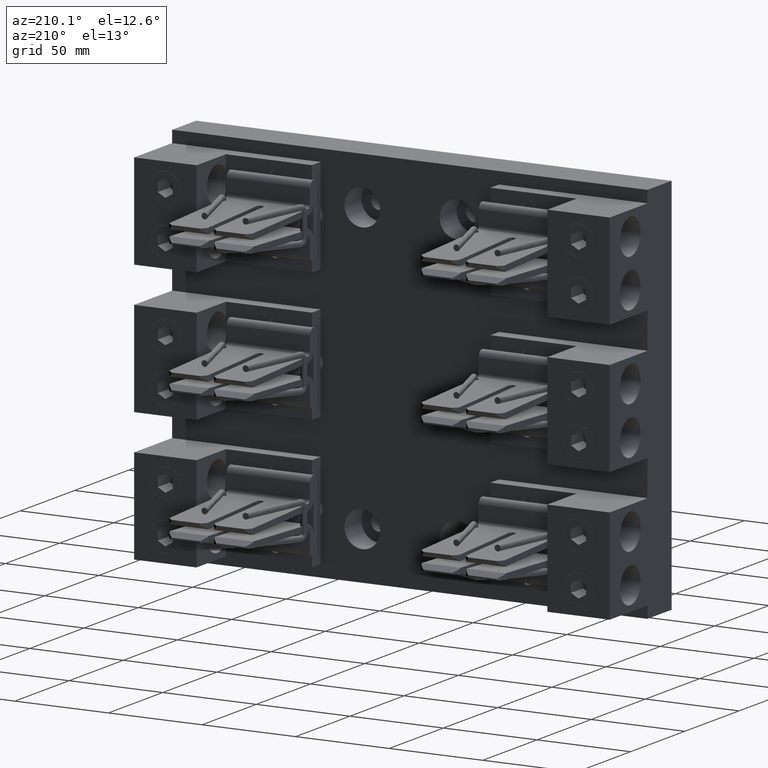
[diagram: clean part render]
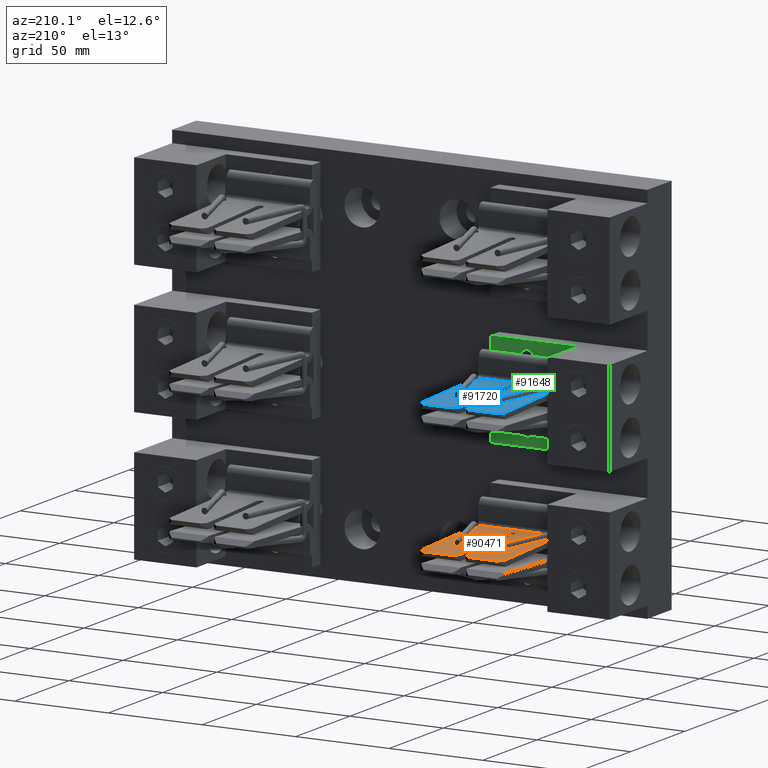
[diagram: same view with three faces highlighted in distinct colors, each labeled with its STEP entity id]
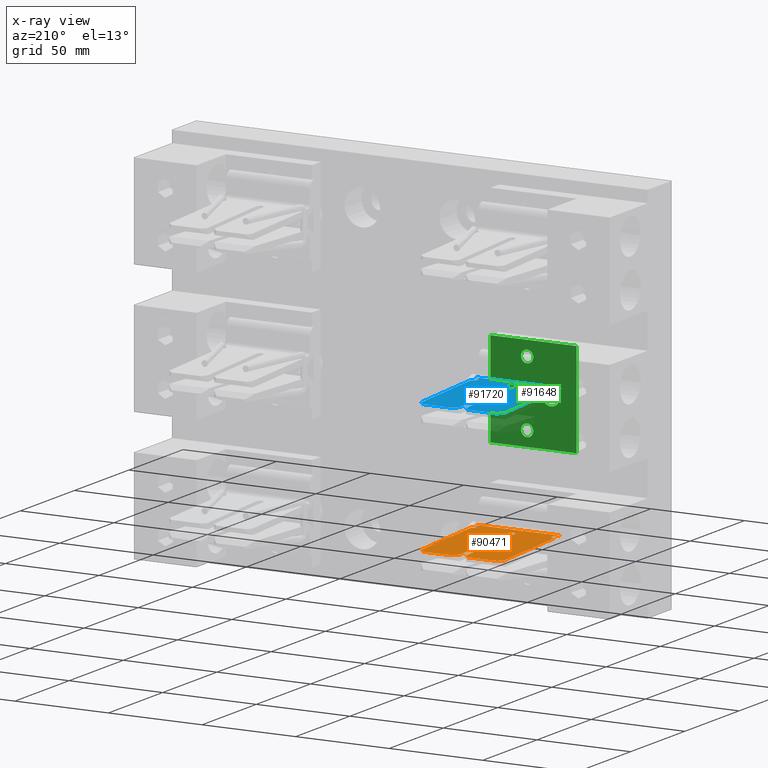
[diagram: x-ray of the same camera — body ghosted, the three highlighted faces saturated]
A machine part, auxiliary view with three faces highlighted in distinct colors.
The next image is the same camera in x-ray (body ghosted, the three faces saturated) — at least one of them is partly hidden behind the body in this view.
Their STEP definitions:

[orange] entity #90471 — the highlighted planar face has unit normal (0, -0.0353, -0.9994).
#1529 = AXIS2_PLACEMENT_3D ( 'NONE', #18706, #18708, #18710 ) ;
#5801 = EDGE_CURVE ( 'NONE', #14370, #14408, #63240, .T. ) ;
#5816 = EDGE_CURVE ( 'NONE', #14446, #14357, #63280, .T. ) ;
#5850 = EDGE_CURVE ( 'NONE', #14313, #14381, #6608, .T. ) ;
#6608 =( BOUNDED_CURVE ( )  B_SPLINE_CURVE ( 3, ( #45332, #45335, #45344, #45331 ),
 .UNSPECIFIED., .F., .T. ) 
 B_SPLINE_CURVE_WITH_KNOTS ( ( 4, 4 ),
 ( 4.712388980384689700, 6.283185307179586200 ),
 .UNSPECIFIED. ) 
 CURVE ( )  GEOMETRIC_REPRESENTATION_ITEM ( )  RATIONAL_B_SPLINE_CURVE ( ( 1.000000000000000000, 0.8047378541243649400, 0.8047378541243649400, 1.000000000000000000 ) ) 
 REPRESENTATION_ITEM ( '' )  );
#6724 =( BOUNDED_CURVE ( )  B_SPLINE_CURVE ( 3, ( #100245, #100227, #100266, #100268 ),
 .UNSPECIFIED., .F., .T. ) 
 B_SPLINE_CURVE_WITH_KNOTS ( ( 4, 4 ),
 ( 3.141592653589793100, 4.712388980384689700 ),
 .UNSPECIFIED. ) 
 CURVE ( )  GEOMETRIC_REPRESENTATION_ITEM ( )  RATIONAL_B_SPLINE_CURVE ( ( 1.000000000000000000, 0.8047378541243649400, 0.8047378541243649400, 1.000000000000000000 ) ) 
 REPRESENTATION_ITEM ( '' )  );
#6725 =( BOUNDED_CURVE ( )  B_SPLINE_CURVE ( 3, ( #100283, #100261, #100265, #100287 ),
 .UNSPECIFIED., .F., .F. ) 
 B_SPLINE_CURVE_WITH_KNOTS ( ( 4, 4 ),
 ( 9.469724577239632400E-017, 3.141592653589793100 ),
 .UNSPECIFIED. ) 
 CURVE ( )  GEOMETRIC_REPRESENTATION_ITEM ( )  RATIONAL_B_SPLINE_CURVE ( ( 1.000000000000000000, 0.3333333333333333700, 0.3333333333333333700, 1.000000000000000000 ) ) 
 REPRESENTATION_ITEM ( '' )  );
#6726 =( BOUNDED_CURVE ( )  B_SPLINE_CURVE ( 3, ( #100307, #100281, #100285, #100311 ),
 .UNSPECIFIED., .F., .F. ) 
 B_SPLINE_CURVE_WITH_KNOTS ( ( 4, 4 ),
 ( 1.570796326794896800, 4.712388980384689700 ),
 .UNSPECIFIED. ) 
 CURVE ( )  GEOMETRIC_REPRESENTATION_ITEM ( )  RATIONAL_B_SPLINE_CURVE ( ( 1.000000000000000000, 0.3333333333333333700, 0.3333333333333333700, 1.000000000000000000 ) ) 
 REPRESENTATION_ITEM ( '' )  );
#7600 = EDGE_CURVE ( 'NONE', #14381, #82788, #9818, .T. ) ;
#7678 = EDGE_CURVE ( 'NONE', #14323, #14313, #6724, .T. ) ;
#7679 = EDGE_CURVE ( 'NONE', #82803, #14323, #10002, .T. ) ;
#7680 = EDGE_CURVE ( 'NONE', #82775, #82227, #10009, .T. ) ;
#7682 = EDGE_CURVE ( 'NONE', #14446, #82227, #6725, .T. ) ;
#7683 = EDGE_CURVE ( 'NONE', #14370, #14357, #10011, .T. ) ;
#7684 = EDGE_CURVE ( 'NONE', #81848, #14408, #10021, .T. ) ;
#7685 = EDGE_CURVE ( 'NONE', #82704, #81848, #10023, .T. ) ;
#7686 = EDGE_CURVE ( 'NONE', #82632, #82704, #6726, .T. ) ;
#7687 = EDGE_CURVE ( 'NONE', #14306, #82632, #10017, .T. ) ;
#7688 = EDGE_CURVE ( 'NONE', #82432, #14306, #10035, .T. ) ;
#7689 = EDGE_CURVE ( 'NONE', #82432, #14307, #10037, .T. ) ;
#7691 = EDGE_CURVE ( 'NONE', #82788, #14307, #10041, .T. ) ;
#7696 = EDGE_CURVE ( 'NONE', #82775, #82803, #10050, .T. ) ;
#9818 = LINE ( 'NONE', #99917, #9829 ) ;
#9829 = VECTOR ( 'NONE', #99942, 39.37007874015748900 ) ;
#10002 = LINE ( 'NONE', #100263, #10006 ) ;
#10006 = VECTOR ( 'NONE', #100275, 39.37007874015748900 ) ;
#10009 = LINE ( 'NONE', #100277, #10015 ) ;
#10011 = LINE ( 'NONE', #100291, #10013 ) ;
#10013 = VECTOR ( 'NONE', #100295, 39.37007874015748100 ) ;
#10015 = VECTOR ( 'NONE', #100279, 39.37007874015748900 ) ;
#10017 = LINE ( 'NONE', #100316, #10027 ) ;
#10021 = LINE ( 'NONE', #100297, #10025 ) ;
#10023 = LINE ( 'NONE', #100301, #10029 ) ;
#10025 = VECTOR ( 'NONE', #100299, 39.37007874015748900 ) ;
#10027 = VECTOR ( 'NONE', #100319, 39.37007874015748100 ) ;
#10029 = VECTOR ( 'NONE', #100303, 39.37007874015748100 ) ;
#10035 = LINE ( 'NONE', #100321, #10039 ) ;
#10037 = LINE ( 'NONE', #100325, #10043 ) ;
#10039 = VECTOR ( 'NONE', #100324, 39.37007874015748100 ) ;
#10041 = LINE ( 'NONE', #100330, #10048 ) ;
#10043 = VECTOR ( 'NONE', #100328, 39.37007874015748100 ) ;
#10048 = VECTOR ( 'NONE', #100333, 39.37007874015748100 ) ;
#10050 = LINE ( 'NONE', #100305, #10053 ) ;
#10053 = VECTOR ( 'NONE', #100309, 39.37007874015748100 ) ;
#11628 = CARTESIAN_POINT ( 'NONE',  ( -2.581000000000000000, 3.521999999999999400, -2.564430197120183900 ) ) ;
#11629 = CARTESIAN_POINT ( 'NONE',  ( -1.875000000000000700, 3.622000000000000300, -2.567960906405042800 ) ) ;
#11635 = CARTESIAN_POINT ( 'NONE',  ( -1.868999999999999600, 1.623999999999999900, -2.497417334893556900 ) ) ;
#11645 = CARTESIAN_POINT ( 'NONE',  ( -1.775000000000000100, 1.529999999999999800, -2.494098468165789000 ) ) ;
#11679 = CARTESIAN_POINT ( 'NONE',  ( -3.525000000000000400, 3.522000000000000200, -2.564430197120184400 ) ) ;
#11692 = CARTESIAN_POINT ( 'NONE',  ( -3.424999999999999800, 3.622000000000000300, -2.567960906405043300 ) ) ;
#11703 = CARTESIAN_POINT ( 'NONE',  ( -1.775000000000000100, 1.718000000000000200, -2.500736201621324400 ) ) ;
#12389 = CARTESIAN_POINT ( 'NONE',  ( -2.818999999999999500, 3.622000000000000300, -2.567960906405043300 ) ) ;
#12427 = CARTESIAN_POINT ( 'NONE',  ( -3.525000000000000400, 1.718000000000000200, -2.500736201621324800 ) ) ;
#14306 = VERTEX_POINT ( 'NONE', #11628 ) ;
#14307 = VERTEX_POINT ( 'NONE', #11629 ) ;
#14313 = VERTEX_POINT ( 'NONE', #11635 ) ;
#14323 = VERTEX_POINT ( 'NONE', #11645 ) ;
#14357 = VERTEX_POINT ( 'NONE', #11679 ) ;
#14370 = VERTEX_POINT ( 'NONE', #11692 ) ;
#14381 = VERTEX_POINT ( 'NONE', #11703 ) ;
#14408 = VERTEX_POINT ( 'NONE', #12389 ) ;
#14446 = VERTEX_POINT ( 'NONE', #12427 ) ;
#16138 = CARTESIAN_POINT ( 'NONE',  ( -2.719000000000000300, 3.522000000000000200, -2.564430197120183900 ) ) ;
#16304 = CARTESIAN_POINT ( 'NONE',  ( -3.525000000000000400, 1.529999999999999800, -2.494098468165789400 ) ) ;
#16384 = CARTESIAN_POINT ( 'NONE',  ( -2.480999999999999000, 3.622000000000000300, -2.567960906405043300 ) ) ;
#16479 = CARTESIAN_POINT ( 'NONE',  ( -2.581000000000000000, 1.753000000000000100, -2.501971949871025600 ) ) ;
#16510 = CARTESIAN_POINT ( 'NONE',  ( -2.718999999999999400, 1.753000000000000100, -2.501971949871025600 ) ) ;
#16541 = CARTESIAN_POINT ( 'NONE',  ( -3.525000000000000400, 1.497777038280820400, -2.492960769064514400 ) ) ;
#16546 = CARTESIAN_POINT ( 'NONE',  ( -1.775000000000000400, 3.522000000000000200, -2.564430197120183500 ) ) ;
#16560 = CARTESIAN_POINT ( 'NONE',  ( -1.775000000000000100, 1.497777038280820900, -2.492960769064513000 ) ) ;
#18691 = PLANE ( 'NONE',  #1529 ) ;
#18706 = CARTESIAN_POINT ( 'NONE',  ( -3.525000000000000400, 3.622000000000000300, -2.567960906405043300 ) ) ;
#18708 = DIRECTION ( 'NONE',  ( 3.921615845194951200E-016, -0.03528510665364337200, -0.9993772867383173800 ) ) ;
#18710 = DIRECTION ( 'NONE',  ( 9.463827654160940800E-017, -0.9993772867383173800, 0.03528510665364337200 ) ) ;
#19878 = FACE_OUTER_BOUND ( 'NONE', #57784, .T. ) ;
#36485 = ORIENTED_EDGE ( 'NONE', *, *, #5850, .T. ) ;
#36486 = ORIENTED_EDGE ( 'NONE', *, *, #7678, .T. ) ;
#36487 = ORIENTED_EDGE ( 'NONE', *, *, #7679, .T. ) ;
#36488 = ORIENTED_EDGE ( 'NONE', *, *, #7696, .T. ) ;
#36489 = ORIENTED_EDGE ( 'NONE', *, *, #7680, .F. ) ;
#36490 = ORIENTED_EDGE ( 'NONE', *, *, #7682, .T. ) ;
#36491 = ORIENTED_EDGE ( 'NONE', *, *, #5816, .F. ) ;
#36492 = ORIENTED_EDGE ( 'NONE', *, *, #7683, .T. ) ;
#36493 = ORIENTED_EDGE ( 'NONE', *, *, #5801, .F. ) ;
#36494 = ORIENTED_EDGE ( 'NONE', *, *, #7684, .T. ) ;
#36495 = ORIENTED_EDGE ( 'NONE', *, *, #7685, .T. ) ;
#36496 = ORIENTED_EDGE ( 'NONE', *, *, #7686, .T. ) ;
#36497 = ORIENTED_EDGE ( 'NONE', *, *, #7687, .T. ) ;
#36498 = ORIENTED_EDGE ( 'NONE', *, *, #7688, .T. ) ;
#36499 = ORIENTED_EDGE ( 'NONE', *, *, #7689, .F. ) ;
#36500 = ORIENTED_EDGE ( 'NONE', *, *, #7691, .T. ) ;
#36501 = ORIENTED_EDGE ( 'NONE', *, *, #7600, .T. ) ;
#45331 = CARTESIAN_POINT ( 'NONE',  ( -1.775000000000000100, 1.718000000000000200, -2.500736201621324400 ) ) ;
#45332 = CARTESIAN_POINT ( 'NONE',  ( -1.868999999999999600, 1.623999999999999900, -2.497417334893556900 ) ) ;
#45335 = CARTESIAN_POINT ( 'NONE',  ( -1.869000000000000000, 1.679063925136929000, -2.499361482010974200 ) ) ;
#45344 = CARTESIAN_POINT ( 'NONE',  ( -1.830063925136928800, 1.717999999999999700, -2.500736201621324400 ) ) ;
#45373 = DIRECTION ( 'NONE',  ( -9.463827654160940800E-017, 0.9993772867383173800, -0.03528510665364337200 ) ) ;
#45374 = CARTESIAN_POINT ( 'NONE',  ( -3.525000000000000400, 3.622000000000000300, -2.567960906405043300 ) ) ;
#45387 = DIRECTION ( 'NONE',  ( 1.000000000000000000, 9.941448615518459200E-017, 3.538835890992686500E-016 ) ) ;
#45397 = CARTESIAN_POINT ( 'NONE',  ( -3.525000000000000400, 3.622000000000000300, -2.567960906405043300 ) ) ;
#57784 = EDGE_LOOP ( 'NONE', ( #36501, #36500, #36499, #36498, #36497, #36496, #36495, #36494, #36493, #36492, #36491, #36490, #36489, #36488, #36487, #36486, #36485 ) ) ;
#63240 = LINE ( 'NONE', #45397, #63258 ) ;
#63258 = VECTOR ( 'NONE', #45387, 39.37007874015748100 ) ;
#63280 = LINE ( 'NONE', #45374, #63286 ) ;
#63286 = VECTOR ( 'NONE', #45373, 39.37007874015748900 ) ;
#81848 = VERTEX_POINT ( 'NONE', #16138 ) ;
#82227 = VERTEX_POINT ( 'NONE', #16304 ) ;
#82432 = VERTEX_POINT ( 'NONE', #16384 ) ;
#82632 = VERTEX_POINT ( 'NONE', #16479 ) ;
#82704 = VERTEX_POINT ( 'NONE', #16510 ) ;
#82775 = VERTEX_POINT ( 'NONE', #16541 ) ;
#82788 = VERTEX_POINT ( 'NONE', #16546 ) ;
#82803 = VERTEX_POINT ( 'NONE', #16560 ) ;
#90471 = ADVANCED_FACE ( 'NONE', ( #19878 ), #18691, .F. ) ;
#99917 = CARTESIAN_POINT ( 'NONE',  ( -1.775000000000000400, 3.622000000000000300, -2.567960906405042800 ) ) ;
#99942 = DIRECTION ( 'NONE',  ( -9.463827654160940800E-017, 0.9993772867383173800, -0.03528510665364337200 ) ) ;
#100227 = CARTESIAN_POINT ( 'NONE',  ( -1.830063925136928800, 1.530000000000000200, -2.494098468165789000 ) ) ;
#100245 = CARTESIAN_POINT ( 'NONE',  ( -1.775000000000000100, 1.529999999999999800, -2.494098468165789000 ) ) ;
#100261 = CARTESIAN_POINT ( 'NONE',  ( -3.337000000000000600, 1.717999999999999700, -2.500736201621324800 ) ) ;
#100263 = CARTESIAN_POINT ( 'NONE',  ( -1.775000000000000400, 3.622000000000000300, -2.567960906405042800 ) ) ;
#100265 = CARTESIAN_POINT ( 'NONE',  ( -3.337000000000000600, 1.530000000000000200, -2.494098468165789400 ) ) ;
#100266 = CARTESIAN_POINT ( 'NONE',  ( -1.869000000000000000, 1.568936074863070700, -2.495473187776139100 ) ) ;
#100268 = CARTESIAN_POINT ( 'NONE',  ( -1.868999999999999600, 1.623999999999999900, -2.497417334893556900 ) ) ;
#100275 = DIRECTION ( 'NONE',  ( -9.463827654160940800E-017, 0.9993772867383173800, -0.03528510665364337200 ) ) ;
#100277 = CARTESIAN_POINT ( 'NONE',  ( -3.525000000000000400, 3.622000000000000300, -2.567960906405043300 ) ) ;
#100279 = DIRECTION ( 'NONE',  ( -9.463827654160940800E-017, 0.9993772867383173800, -0.03528510665364337200 ) ) ;
#100281 = CARTESIAN_POINT ( 'NONE',  ( -2.581000000000000000, 1.615000000000000900, -2.497099571057919600 ) ) ;
#100283 = CARTESIAN_POINT ( 'NONE',  ( -3.525000000000000400, 1.718000000000000200, -2.500736201621324800 ) ) ;
#100285 = CARTESIAN_POINT ( 'NONE',  ( -2.718999999999999400, 1.615000000000000900, -2.497099571057919600 ) ) ;
#100287 = CARTESIAN_POINT ( 'NONE',  ( -3.525000000000000400, 1.529999999999999800, -2.494098468165789400 ) ) ;
#100291 = CARTESIAN_POINT ( 'NONE',  ( -3.532867345756415500, 3.514132654243585100, -2.564152424013090400 ) ) ;
#100295 = DIRECTION ( 'NONE',  ( -0.7068865159459665200, -0.7068865159459648600, 0.02495810785192139800 ) ) ;
#100297 = CARTESIAN_POINT ( 'NONE',  ( -2.818999999999999500, 3.622000000000000300, -2.567960906405043300 ) ) ;
#100299 = DIRECTION ( 'NONE',  ( -0.7068865159459637400, 0.7068865159459674100, -0.02495810785192199800 ) ) ;
#100301 = CARTESIAN_POINT ( 'NONE',  ( -2.719000000000000300, 3.622000000000000300, -2.567960906405043300 ) ) ;
#100303 = DIRECTION ( 'NONE',  ( -2.178892873823366000E-016, 0.9993772867383173800, -0.03528510665364337900 ) ) ;
#100305 = CARTESIAN_POINT ( 'NONE',  ( -3.525000000000000400, 1.497777038280820400, -2.492960769064514400 ) ) ;
#100307 = CARTESIAN_POINT ( 'NONE',  ( -2.581000000000000000, 1.753000000000000100, -2.501971949871025600 ) ) ;
#100309 = DIRECTION ( 'NONE',  ( 1.000000000000000000, 9.941448615518459200E-017, 3.538835890992686500E-016 ) ) ;
#100311 = CARTESIAN_POINT ( 'NONE',  ( -2.718999999999999400, 1.753000000000000100, -2.501971949871025600 ) ) ;
#100316 = CARTESIAN_POINT ( 'NONE',  ( -2.581000000000000000, 3.622000000000000300, -2.567960906405043300 ) ) ;
#100319 = DIRECTION ( 'NONE',  ( -2.861273429911776700E-017, -0.9993772867383173800, 0.03528510665364337900 ) ) ;
#100321 = CARTESIAN_POINT ( 'NONE',  ( -2.590957987920044800, 3.512042012079954500, -2.564078609516105900 ) ) ;
#100324 = DIRECTION ( 'NONE',  ( -0.7068865159459665200, -0.7068865159459648600, 0.02495810785192139500 ) ) ;
#100325 = CARTESIAN_POINT ( 'NONE',  ( -3.525000000000000400, 3.622000000000000300, -2.567960906405043300 ) ) ;
#100328 = DIRECTION ( 'NONE',  ( 1.000000000000000000, 9.941448615518459200E-017, 3.538835890992686500E-016 ) ) ;
#100330 = CARTESIAN_POINT ( 'NONE',  ( -1.875000000000000700, 3.622000000000000300, -2.567960906405042800 ) ) ;
#100333 = DIRECTION ( 'NONE',  ( -0.7068865159459657400, 0.7068865159459655200, -0.02495810785192192600 ) ) ;

[blue] entity #91720 — the highlighted planar face has unit normal (0, -0.0353, -0.9994).
#8558 = PLANE ( 'NONE',  #56436 ) ;
#8575 = CARTESIAN_POINT ( 'NONE',  ( -3.525000000000000400, 3.622000000000000300, 0.1820390935949564600 ) ) ;
#8577 = DIRECTION ( 'NONE',  ( 3.921615845194951200E-016, -0.03528510665364337200, -0.9993772867383173800 ) ) ;
#8579 = DIRECTION ( 'NONE',  ( 9.463827654160940800E-017, -0.9993772867383173800, 0.03528510665364337200 ) ) ;
#22733 = CARTESIAN_POINT ( 'NONE',  ( -1.869000000000000000, 1.679063925136929000, 0.2506385179890257000 ) ) ;
#22738 = CARTESIAN_POINT ( 'NONE',  ( -1.868999999999999600, 1.623999999999999900, 0.2525826651064431200 ) ) ;
#22742 = CARTESIAN_POINT ( 'NONE',  ( -1.830063925136928800, 1.717999999999999700, 0.2492637983786755200 ) ) ;
#22743 = CARTESIAN_POINT ( 'NONE',  ( -1.775000000000000100, 1.718000000000000200, 0.2492637983786756300 ) ) ;
#22781 = CARTESIAN_POINT ( 'NONE',  ( -3.525000000000000400, 3.622000000000000300, 0.1820390935949564600 ) ) ;
#22782 = CARTESIAN_POINT ( 'NONE',  ( -3.525000000000000400, 3.622000000000000300, 0.1820390935949564600 ) ) ;
#22783 = DIRECTION ( 'NONE',  ( -9.463827654160940800E-017, 0.9993772867383173800, -0.03528510665364337200 ) ) ;
#22796 = DIRECTION ( 'NONE',  ( 1.000000000000000000, 9.941448615518459200E-017, 3.538835890992686500E-016 ) ) ;
#22834 = CARTESIAN_POINT ( 'NONE',  ( -1.775000000000000400, 3.622000000000000300, 0.1820390935949570700 ) ) ;
#22835 = DIRECTION ( 'NONE',  ( -9.463827654160940800E-017, 0.9993772867383173800, -0.03528510665364337200 ) ) ;
#22844 = DIRECTION ( 'NONE',  ( 1.000000000000000000, 9.941448615518459200E-017, 3.538835890992686500E-016 ) ) ;
#22852 = CARTESIAN_POINT ( 'NONE',  ( -3.525000000000000400, 1.497777038280820400, 0.2570392309354859200 ) ) ;
#22855 = CARTESIAN_POINT ( 'NONE',  ( -1.875000000000000700, 3.622000000000000300, 0.1820390935949570100 ) ) ;
#22856 = DIRECTION ( 'NONE',  ( -0.7068865159459657400, 0.7068865159459655200, -0.02495810785192192600 ) ) ;
#22860 = CARTESIAN_POINT ( 'NONE',  ( -2.581000000000000000, 1.615000000000000900, 0.2529004289420803100 ) ) ;
#22861 = CARTESIAN_POINT ( 'NONE',  ( -2.590957987920044800, 3.512042012079954500, 0.1859213904838941700 ) ) ;
#22865 = CARTESIAN_POINT ( 'NONE',  ( -3.525000000000000400, 3.622000000000000300, 0.1820390935949564600 ) ) ;
#22866 = CARTESIAN_POINT ( 'NONE',  ( -2.581000000000000000, 1.753000000000000100, 0.2480280501289745800 ) ) ;
#22867 = DIRECTION ( 'NONE',  ( 1.000000000000000000, 9.941448615518459200E-017, 3.538835890992686500E-016 ) ) ;
#22868 = DIRECTION ( 'NONE',  ( -0.7068865159459665200, -0.7068865159459648600, 0.02495810785192139500 ) ) ;
#22869 = CARTESIAN_POINT ( 'NONE',  ( -2.581000000000000000, 3.622000000000000300, 0.1820390935949567900 ) ) ;
#22870 = DIRECTION ( 'NONE',  ( -2.861273429911776700E-017, -0.9993772867383173800, 0.03528510665364337900 ) ) ;
#22871 = CARTESIAN_POINT ( 'NONE',  ( -3.337000000000000600, 1.717999999999999700, 0.2492637983786750400 ) ) ;
#22872 = CARTESIAN_POINT ( 'NONE',  ( -3.525000000000000400, 1.718000000000000200, 0.2492637983786750200 ) ) ;
#22873 = CARTESIAN_POINT ( 'NONE',  ( -2.718999999999999400, 1.615000000000000900, 0.2529004289420802000 ) ) ;
#22874 = CARTESIAN_POINT ( 'NONE',  ( -2.718999999999999400, 1.753000000000000100, 0.2480280501289745500 ) ) ;
#22875 = CARTESIAN_POINT ( 'NONE',  ( -2.719000000000000300, 3.622000000000000300, 0.1820390935949567100 ) ) ;
#22876 = DIRECTION ( 'NONE',  ( -2.178892873823366000E-016, 0.9993772867383173800, -0.03528510665364337900 ) ) ;
#22877 = CARTESIAN_POINT ( 'NONE',  ( -2.818999999999999500, 3.622000000000000300, 0.1820390935949566800 ) ) ;
#22878 = DIRECTION ( 'NONE',  ( -0.7068865159459637400, 0.7068865159459674100, -0.02495810785192199800 ) ) ;
#22879 = CARTESIAN_POINT ( 'NONE',  ( -3.532867345756415500, 3.514132654243585100, 0.1858475759869093700 ) ) ;
#22880 = DIRECTION ( 'NONE',  ( -0.7068865159459665200, -0.7068865159459648600, 0.02495810785192139800 ) ) ;
#22881 = CARTESIAN_POINT ( 'NONE',  ( -1.830063925136928800, 1.530000000000000200, 0.2559015318342107700 ) ) ;
#22882 = CARTESIAN_POINT ( 'NONE',  ( -1.775000000000000100, 1.529999999999999800, 0.2559015318342109400 ) ) ;
#22883 = CARTESIAN_POINT ( 'NONE',  ( -3.337000000000000600, 1.530000000000000200, 0.2559015318342102700 ) ) ;
#22884 = CARTESIAN_POINT ( 'NONE',  ( -3.525000000000000400, 1.529999999999999800, 0.2559015318342103300 ) ) ;
#22885 = CARTESIAN_POINT ( 'NONE',  ( -3.525000000000000400, 3.622000000000000300, 0.1820390935949564600 ) ) ;
#22886 = DIRECTION ( 'NONE',  ( -9.463827654160940800E-017, 0.9993772867383173800, -0.03528510665364337200 ) ) ;
#22887 = CARTESIAN_POINT ( 'NONE',  ( -1.775000000000000400, 3.622000000000000300, 0.1820390935949570700 ) ) ;
#22888 = DIRECTION ( 'NONE',  ( -9.463827654160940800E-017, 0.9993772867383173800, -0.03528510665364337200 ) ) ;
#22891 = CARTESIAN_POINT ( 'NONE',  ( -1.869000000000000000, 1.568936074863070700, 0.2545268122238606400 ) ) ;
#22892 = CARTESIAN_POINT ( 'NONE',  ( -1.868999999999999600, 1.623999999999999900, 0.2525826651064431200 ) ) ;
#25486 = LINE ( 'NONE', #22781, #25489 ) ;
#25489 = VECTOR ( 'NONE', #22783, 39.37007874015748900 ) ;
#25498 = LINE ( 'NONE', #22782, #25503 ) ;
#25503 = VECTOR ( 'NONE', #22796, 39.37007874015748100 ) ;
#25540 = LINE ( 'NONE', #22834, #25543 ) ;
#25543 = VECTOR ( 'NONE', #22835, 39.37007874015748900 ) ;
#25554 = LINE ( 'NONE', #22861, #25567 ) ;
#25558 = LINE ( 'NONE', #22852, #25560 ) ;
#25560 = VECTOR ( 'NONE', #22844, 39.37007874015748100 ) ;
#25561 = LINE ( 'NONE', #22855, #25563 ) ;
#25562 = LINE ( 'NONE', #22865, #25565 ) ;
#25563 = VECTOR ( 'NONE', #22856, 39.37007874015748100 ) ;
#25565 = VECTOR ( 'NONE', #22867, 39.37007874015748100 ) ;
#25566 = LINE ( 'NONE', #22869, #25568 ) ;
#25567 = VECTOR ( 'NONE', #22868, 39.37007874015748100 ) ;
#25568 = VECTOR ( 'NONE', #22870, 39.37007874015748100 ) ;
#25569 = LINE ( 'NONE', #22875, #25571 ) ;
#25570 = LINE ( 'NONE', #22877, #25573 ) ;
#25571 = VECTOR ( 'NONE', #22876, 39.37007874015748100 ) ;
#25572 = LINE ( 'NONE', #22879, #25574 ) ;
#25573 = VECTOR ( 'NONE', #22878, 39.37007874015748900 ) ;
#25574 = VECTOR ( 'NONE', #22880, 39.37007874015748100 ) ;
#25575 = LINE ( 'NONE', #22885, #25577 ) ;
#25576 = LINE ( 'NONE', #22887, #25578 ) ;
#25577 = VECTOR ( 'NONE', #22886, 39.37007874015748900 ) ;
#25578 = VECTOR ( 'NONE', #22888, 39.37007874015748900 ) ;
#27614 = CARTESIAN_POINT ( 'NONE',  ( -2.581000000000000000, 3.521999999999999400, 0.1855698028798159800 ) ) ;
#27634 = CARTESIAN_POINT ( 'NONE',  ( -1.775000000000000100, 1.529999999999999800, 0.2559015318342109400 ) ) ;
#27651 = CARTESIAN_POINT ( 'NONE',  ( -1.868999999999999600, 1.623999999999999900, 0.2525826651064431200 ) ) ;
#27704 = CARTESIAN_POINT ( 'NONE',  ( -1.775000000000000100, 1.718000000000000200, 0.2492637983786756300 ) ) ;
#27707 = CARTESIAN_POINT ( 'NONE',  ( -3.525000000000000400, 1.497777038280820400, 0.2570392309354859200 ) ) ;
#27728 = CARTESIAN_POINT ( 'NONE',  ( -3.525000000000000400, 1.529999999999999800, 0.2559015318342103300 ) ) ;
#27742 = CARTESIAN_POINT ( 'NONE',  ( -2.718999999999999400, 1.753000000000000100, 0.2480280501289745500 ) ) ;
#27793 = CARTESIAN_POINT ( 'NONE',  ( -2.719000000000000300, 3.522000000000000200, 0.1855698028798158600 ) ) ;
#27795 = CARTESIAN_POINT ( 'NONE',  ( -2.818999999999999500, 3.622000000000000300, 0.1820390935949566800 ) ) ;
#27871 = CARTESIAN_POINT ( 'NONE',  ( -2.480999999999999000, 3.622000000000000300, 0.1820390935949568200 ) ) ;
#27950 = CARTESIAN_POINT ( 'NONE',  ( -1.875000000000000700, 3.622000000000000300, 0.1820390935949570100 ) ) ;
#27959 = CARTESIAN_POINT ( 'NONE',  ( -1.775000000000000400, 3.522000000000000200, 0.1855698028798162500 ) ) ;
#27998 = CARTESIAN_POINT ( 'NONE',  ( -2.581000000000000000, 1.753000000000000100, 0.2480280501289745800 ) ) ;
#28016 = CARTESIAN_POINT ( 'NONE',  ( -3.525000000000000400, 3.522000000000000200, 0.1855698028798156200 ) ) ;
#28048 = CARTESIAN_POINT ( 'NONE',  ( -3.525000000000000400, 1.718000000000000200, 0.2492637983786750200 ) ) ;
#28052 = CARTESIAN_POINT ( 'NONE',  ( -1.775000000000000100, 1.497777038280820900, 0.2570392309354865300 ) ) ;
#31022 = VERTEX_POINT ( 'NONE', #27614 ) ;
#31038 = VERTEX_POINT ( 'NONE', #27634 ) ;
#31049 = VERTEX_POINT ( 'NONE', #27651 ) ;
#31090 = VERTEX_POINT ( 'NONE', #27704 ) ;
#31093 = VERTEX_POINT ( 'NONE', #27707 ) ;
#31108 = VERTEX_POINT ( 'NONE', #27728 ) ;
#31121 = VERTEX_POINT ( 'NONE', #27742 ) ;
#31176 = VERTEX_POINT ( 'NONE', #27793 ) ;
#31178 = VERTEX_POINT ( 'NONE', #27795 ) ;
#31221 = VERTEX_POINT ( 'NONE', #27871 ) ;
#31243 = VERTEX_POINT ( 'NONE', #27950 ) ;
#31251 = VERTEX_POINT ( 'NONE', #27959 ) ;
#31262 = VERTEX_POINT ( 'NONE', #27998 ) ;
#31270 = VERTEX_POINT ( 'NONE', #28016 ) ;
#31284 = VERTEX_POINT ( 'NONE', #28048 ) ;
#31289 = VERTEX_POINT ( 'NONE', #28052 ) ;
#31348 = VERTEX_POINT ( 'NONE', #59212 ) ;
#36633 = EDGE_LOOP ( 'NONE', ( #63801, #63803, #63805, #63807, #63809, #63811, #63813, #63815, #63817, #63819, #63821, #63823, #63825, #63827, #63829, #63831, #63833 ) ) ;
#46264 = EDGE_CURVE ( 'NONE', #31049, #31090, #86323, .T. ) ;
#46281 = EDGE_CURVE ( 'NONE', #31284, #31270, #25486, .T. ) ;
#46288 = EDGE_CURVE ( 'NONE', #31348, #31178, #25498, .T. ) ;
#46308 = EDGE_CURVE ( 'NONE', #31090, #31251, #25540, .T. ) ;
#46318 = EDGE_CURVE ( 'NONE', #31093, #31289, #25558, .T. ) ;
#46320 = EDGE_CURVE ( 'NONE', #31251, #31243, #25561, .T. ) ;
#46321 = EDGE_CURVE ( 'NONE', #31221, #31243, #25562, .T. ) ;
#46322 = EDGE_CURVE ( 'NONE', #31221, #31022, #25554, .T. ) ;
#46323 = EDGE_CURVE ( 'NONE', #31022, #31262, #25566, .T. ) ;
#46324 = EDGE_CURVE ( 'NONE', #31262, #31121, #86329, .T. ) ;
#46325 = EDGE_CURVE ( 'NONE', #31121, #31176, #25569, .T. ) ;
#46326 = EDGE_CURVE ( 'NONE', #31176, #31178, #25570, .T. ) ;
#46327 = EDGE_CURVE ( 'NONE', #31348, #31270, #25572, .T. ) ;
#46328 = EDGE_CURVE ( 'NONE', #31284, #31108, #86331, .T. ) ;
#46329 = EDGE_CURVE ( 'NONE', #31093, #31108, #25575, .T. ) ;
#46330 = EDGE_CURVE ( 'NONE', #31289, #31038, #25576, .T. ) ;
#46331 = EDGE_CURVE ( 'NONE', #31038, #31049, #86333, .T. ) ;
#56436 = AXIS2_PLACEMENT_3D ( 'NONE', #8575, #8577, #8579 ) ;
#59212 = CARTESIAN_POINT ( 'NONE',  ( -3.424999999999999800, 3.622000000000000300, 0.1820390935949564900 ) ) ;
#63801 = ORIENTED_EDGE ( 'NONE', *, *, #46308, .T. ) ;
#63803 = ORIENTED_EDGE ( 'NONE', *, *, #46320, .T. ) ;
#63805 = ORIENTED_EDGE ( 'NONE', *, *, #46321, .F. ) ;
#63807 = ORIENTED_EDGE ( 'NONE', *, *, #46322, .T. ) ;
#63809 = ORIENTED_EDGE ( 'NONE', *, *, #46323, .T. ) ;
#63811 = ORIENTED_EDGE ( 'NONE', *, *, #46324, .T. ) ;
#63813 = ORIENTED_EDGE ( 'NONE', *, *, #46325, .T. ) ;
#63815 = ORIENTED_EDGE ( 'NONE', *, *, #46326, .T. ) ;
#63817 = ORIENTED_EDGE ( 'NONE', *, *, #46288, .F. ) ;
#63819 = ORIENTED_EDGE ( 'NONE', *, *, #46327, .T. ) ;
#63821 = ORIENTED_EDGE ( 'NONE', *, *, #46281, .F. ) ;
#63823 = ORIENTED_EDGE ( 'NONE', *, *, #46328, .T. ) ;
#63825 = ORIENTED_EDGE ( 'NONE', *, *, #46329, .F. ) ;
#63827 = ORIENTED_EDGE ( 'NONE', *, *, #46318, .T. ) ;
#63829 = ORIENTED_EDGE ( 'NONE', *, *, #46330, .T. ) ;
#63831 = ORIENTED_EDGE ( 'NONE', *, *, #46331, .T. ) ;
#63833 = ORIENTED_EDGE ( 'NONE', *, *, #46264, .T. ) ;
#86323 =( BOUNDED_CURVE ( )  B_SPLINE_CURVE ( 3, ( #22738, #22733, #22742, #22743 ),
 .UNSPECIFIED., .F., .F. ) 
 B_SPLINE_CURVE_WITH_KNOTS ( ( 4, 4 ),
 ( 4.712388980384689700, 6.283185307179586200 ),
 .UNSPECIFIED. ) 
 CURVE ( )  GEOMETRIC_REPRESENTATION_ITEM ( )  RATIONAL_B_SPLINE_CURVE ( ( 1.000000000000000000, 0.8047378541243649400, 0.8047378541243649400, 1.000000000000000000 ) ) 
 REPRESENTATION_ITEM ( '' )  );
#86329 =( BOUNDED_CURVE ( )  B_SPLINE_CURVE ( 3, ( #22866, #22860, #22873, #22874 ),
 .UNSPECIFIED., .F., .F. ) 
 B_SPLINE_CURVE_WITH_KNOTS ( ( 4, 4 ),
 ( 1.570796326794896800, 4.712388980384689700 ),
 .UNSPECIFIED. ) 
 CURVE ( )  GEOMETRIC_REPRESENTATION_ITEM ( )  RATIONAL_B_SPLINE_CURVE ( ( 1.000000000000000000, 0.3333333333333333700, 0.3333333333333333700, 1.000000000000000000 ) ) 
 REPRESENTATION_ITEM ( '' )  );
#86331 =( BOUNDED_CURVE ( )  B_SPLINE_CURVE ( 3, ( #22872, #22871, #22883, #22884 ),
 .UNSPECIFIED., .F., .F. ) 
 B_SPLINE_CURVE_WITH_KNOTS ( ( 4, 4 ),
 ( 9.469724577239687900E-017, 3.141592653589793100 ),
 .UNSPECIFIED. ) 
 CURVE ( )  GEOMETRIC_REPRESENTATION_ITEM ( )  RATIONAL_B_SPLINE_CURVE ( ( 1.000000000000000000, 0.3333333333333333700, 0.3333333333333333700, 1.000000000000000000 ) ) 
 REPRESENTATION_ITEM ( '' )  );
#86333 =( BOUNDED_CURVE ( )  B_SPLINE_CURVE ( 3, ( #22882, #22881, #22891, #22892 ),
 .UNSPECIFIED., .F., .F. ) 
 B_SPLINE_CURVE_WITH_KNOTS ( ( 4, 4 ),
 ( 3.141592653589793100, 4.712388980384689700 ),
 .UNSPECIFIED. ) 
 CURVE ( )  GEOMETRIC_REPRESENTATION_ITEM ( )  RATIONAL_B_SPLINE_CURVE ( ( 1.000000000000000000, 0.8047378541243649400, 0.8047378541243649400, 1.000000000000000000 ) ) 
 REPRESENTATION_ITEM ( '' )  );
#91720 = ADVANCED_FACE ( 'NONE', ( #98352 ), #8558, .F. ) ;
#98352 = FACE_OUTER_BOUND ( 'NONE', #36633, .T. ) ;

[green] entity #91648 — the highlighted planar face has unit normal (0, -1, 0).
#12605 = CARTESIAN_POINT ( 'NONE',  ( -2.650000000000000400, 1.186999999999999800, -0.6880000000000000600 ) ) ;
#12606 = DIRECTION ( 'NONE',  ( -0.0000000000000000000, 1.000000000000000000, -0.0000000000000000000 ) ) ;
#12607 = DIRECTION ( 'NONE',  ( 0.0000000000000000000, 0.0000000000000000000, 1.000000000000000000 ) ) ;
#12615 = CARTESIAN_POINT ( 'NONE',  ( -2.649999999999999900, 1.186999999999999800, 0.6880000000000000600 ) ) ;
#12616 = DIRECTION ( 'NONE',  ( -0.0000000000000000000, 1.000000000000000000, -0.0000000000000000000 ) ) ;
#12617 = DIRECTION ( 'NONE',  ( 0.0000000000000000000, 0.0000000000000000000, 1.000000000000000000 ) ) ;
#12625 = CARTESIAN_POINT ( 'NONE',  ( -3.149999999999999900, 1.186999999999999600, 0.0000000000000000000 ) ) ;
#12626 = DIRECTION ( 'NONE',  ( -1.130108105487147000E-016, 1.000000000000000000, 0.0000000000000000000 ) ) ;
#12627 = DIRECTION ( 'NONE',  ( -1.000000000000000000, 0.0000000000000000000, 0.0000000000000000000 ) ) ;
#12637 = CARTESIAN_POINT ( 'NONE',  ( -2.149999999999999900, 1.186999999999999800, 0.0000000000000000000 ) ) ;
#12638 = DIRECTION ( 'NONE',  ( -1.130108105487147000E-016, 1.000000000000000000, 0.0000000000000000000 ) ) ;
#12639 = DIRECTION ( 'NONE',  ( -1.000000000000000000, 0.0000000000000000000, 0.0000000000000000000 ) ) ;
#12746 = CARTESIAN_POINT ( 'NONE',  ( -3.689999999999999500, 1.186999999999999600, 1.000000000000000000 ) ) ;
#12751 = DIRECTION ( 'NONE',  ( -0.0000000000000000000, -0.0000000000000000000, -1.000000000000000000 ) ) ;
#12752 = CARTESIAN_POINT ( 'NONE',  ( -3.689999999999999500, 1.186999999999999600, 1.000000000000000000 ) ) ;
#12755 = DIRECTION ( 'NONE',  ( -0.0000000000000000000, -0.0000000000000000000, -1.000000000000000000 ) ) ;
#12758 = CARTESIAN_POINT ( 'NONE',  ( -3.689999999999999500, 1.186999999999999600, 1.000000000000000000 ) ) ;
#12759 = DIRECTION ( 'NONE',  ( -0.0000000000000000000, -0.0000000000000000000, -1.000000000000000000 ) ) ;
#12801 = CARTESIAN_POINT ( 'NONE',  ( -1.876999999999999800, 1.186999999999999800, 1.000000000000000000 ) ) ;
#12802 = DIRECTION ( 'NONE',  ( -0.0000000000000000000, -0.0000000000000000000, -1.000000000000000000 ) ) ;
#12804 = CARTESIAN_POINT ( 'NONE',  ( -2.650000000000000400, 1.186999999999999800, -0.6880000000000000600 ) ) ;
#12805 = DIRECTION ( 'NONE',  ( -0.0000000000000000000, 1.000000000000000000, -0.0000000000000000000 ) ) ;
#12806 = DIRECTION ( 'NONE',  ( 0.0000000000000000000, 0.0000000000000000000, 1.000000000000000000 ) ) ;
#12807 = CARTESIAN_POINT ( 'NONE',  ( -2.649999999999999900, 1.186999999999999800, 0.6880000000000000600 ) ) ;
#12808 = DIRECTION ( 'NONE',  ( -0.0000000000000000000, 1.000000000000000000, -0.0000000000000000000 ) ) ;
#12809 = DIRECTION ( 'NONE',  ( 0.0000000000000000000, 0.0000000000000000000, 1.000000000000000000 ) ) ;
#12810 = CARTESIAN_POINT ( 'NONE',  ( -1.876999999999999800, 1.186999999999999800, -1.000000000000000000 ) ) ;
#12811 = DIRECTION ( 'NONE',  ( -1.000000000000000000, -1.130108105487147000E-016, 0.0000000000000000000 ) ) ;
#12812 = CARTESIAN_POINT ( 'NONE',  ( -3.149999999999999900, 1.186999999999999600, 0.0000000000000000000 ) ) ;
#12813 = DIRECTION ( 'NONE',  ( -1.130108105487147000E-016, 1.000000000000000000, 0.0000000000000000000 ) ) ;
#12814 = DIRECTION ( 'NONE',  ( -1.000000000000000000, 0.0000000000000000000, 0.0000000000000000000 ) ) ;
#12815 = CARTESIAN_POINT ( 'NONE',  ( -1.876999999999999800, 1.186999999999999800, 1.000000000000000000 ) ) ;
#12816 = CARTESIAN_POINT ( 'NONE',  ( -3.689999999999999500, 1.186999999999999600, 1.000000000000000000 ) ) ;
#12817 = CARTESIAN_POINT ( 'NONE',  ( -2.149999999999999900, 1.186999999999999800, 0.0000000000000000000 ) ) ;
#12818 = DIRECTION ( 'NONE',  ( -1.130108105487147000E-016, 1.000000000000000000, 0.0000000000000000000 ) ) ;
#12819 = DIRECTION ( 'NONE',  ( -1.000000000000000000, 0.0000000000000000000, 0.0000000000000000000 ) ) ;
#12820 = CARTESIAN_POINT ( 'NONE',  ( -3.689999999999999500, 1.186999999999999600, 1.000000000000000000 ) ) ;
#12821 = DIRECTION ( 'NONE',  ( -0.0000000000000000000, -0.0000000000000000000, -1.000000000000000000 ) ) ;
#12822 = DIRECTION ( 'NONE',  ( -0.0000000000000000000, -0.0000000000000000000, -1.000000000000000000 ) ) ;
#12823 = DIRECTION ( 'NONE',  ( -1.000000000000000000, -1.130108105487147000E-016, 0.0000000000000000000 ) ) ;
#15875 = CARTESIAN_POINT ( 'NONE',  ( -1.876999999999999800, 1.186999999999999800, 1.000000000000000000 ) ) ;
#15878 = CARTESIAN_POINT ( 'NONE',  ( -1.876999999999999800, 1.186999999999999800, -1.000000000000000000 ) ) ;
#15903 = CARTESIAN_POINT ( 'NONE',  ( -3.689999999999999500, 1.186999999999999600, -1.000000000000000000 ) ) ;
#15912 = CARTESIAN_POINT ( 'NONE',  ( -2.307999999999999400, 1.186999999999999800, 0.0000000000000000000 ) ) ;
#15914 = CARTESIAN_POINT ( 'NONE',  ( -1.992000000000000000, 1.186999999999999800, 1.934941942652816200E-017 ) ) ;
#15919 = CARTESIAN_POINT ( 'NONE',  ( -3.338499999999999800, 1.186999999999999600, 0.0000000000000000000 ) ) ;
#15921 = CARTESIAN_POINT ( 'NONE',  ( -2.961500000000000000, 1.186999999999999600, 2.308459216392761500E-017 ) ) ;
#15927 = CARTESIAN_POINT ( 'NONE',  ( -2.649999999999999900, 1.186999999999999800, 0.8164999999999994500 ) ) ;
#15929 = CARTESIAN_POINT ( 'NONE',  ( -2.649999999999999900, 1.186999999999999800, 0.5595000000000005500 ) ) ;
#15933 = CARTESIAN_POINT ( 'NONE',  ( -2.650000000000000400, 1.186999999999999800, -0.5595000000000002200 ) ) ;
#15934 = CARTESIAN_POINT ( 'NONE',  ( -2.650000000000000400, 1.186999999999999800, -0.8164999999999997800 ) ) ;
#15939 = CARTESIAN_POINT ( 'NONE',  ( -3.689999999999999500, 1.186999999999999600, 0.7065332902948088200 ) ) ;
#15940 = CARTESIAN_POINT ( 'NONE',  ( -3.689999999999999500, 1.186999999999999600, 1.000000000000000000 ) ) ;
#15951 = CARTESIAN_POINT ( 'NONE',  ( -3.689999999999999500, 1.186999999999999600, -0.2934667097051911800 ) ) ;
#15957 = CARTESIAN_POINT ( 'NONE',  ( -3.689999999999999500, 1.186999999999999600, 0.2934667097051912300 ) ) ;
#15971 = CARTESIAN_POINT ( 'NONE',  ( -3.689999999999999500, 1.186999999999999600, -0.7065332902948088200 ) ) ;
#21338 = PLANE ( 'NONE',  #56014 ) ;
#21357 = CARTESIAN_POINT ( 'NONE',  ( -1.876999999999999800, 1.186999999999999800, 1.000000000000000000 ) ) ;
#21359 = DIRECTION ( 'NONE',  ( 1.130108105487147000E-016, -1.000000000000000000, 0.0000000000000000000 ) ) ;
#21361 = DIRECTION ( 'NONE',  ( 1.000000000000000000, 1.130108105487147000E-016, 0.0000000000000000000 ) ) ;
#28899 = EDGE_CURVE ( 'NONE', #78168, #78167, #63569, .T. ) ;
#28907 = EDGE_CURVE ( 'NONE', #78162, #78160, #63581, .T. ) ;
#28916 = EDGE_CURVE ( 'NONE', #78150, #78148, #63593, .T. ) ;
#28924 = EDGE_CURVE ( 'NONE', #78143, #78140, #63605, .T. ) ;
#28946 = EDGE_CURVE ( 'NONE', #78215, #78127, #63623, .T. ) ;
#28954 = EDGE_CURVE ( 'NONE', #78174, #78173, #63645, .T. ) ;
#28959 = EDGE_CURVE ( 'NONE', #78196, #78190, #63656, .T. ) ;
#28993 = EDGE_CURVE ( 'NONE', #78092, #78096, #63702, .T. ) ;
#28997 = EDGE_CURVE ( 'NONE', #78167, #78168, #63710, .T. ) ;
#28999 = EDGE_CURVE ( 'NONE', #78160, #78162, #63714, .T. ) ;
#29002 = EDGE_CURVE ( 'NONE', #78148, #78150, #63716, .T. ) ;
#29004 = EDGE_CURVE ( 'NONE', #78140, #78143, #63718, .T. ) ;
#29006 = EDGE_CURVE ( 'NONE', #78096, #78127, #63720, .T. ) ;
#29008 = EDGE_CURVE ( 'NONE', #78190, #78215, #63722, .T. ) ;
#29010 = EDGE_CURVE ( 'NONE', #78173, #78196, #63706, .T. ) ;
#29012 = EDGE_CURVE ( 'NONE', #78092, #78174, #63726, .T. ) ;
#35623 = EDGE_LOOP ( 'NONE', ( #57282, #57279, #57277, #57274, #57271, #57269, #57266, #57264 ) ) ;
#35637 = EDGE_LOOP ( 'NONE', ( #57285, #57284 ) ) ;
#35638 = EDGE_LOOP ( 'NONE', ( #57301, #57298 ) ) ;
#35641 = EDGE_LOOP ( 'NONE', ( #57296, #57293 ) ) ;
#35642 = EDGE_LOOP ( 'NONE', ( #57290, #57288 ) ) ;
#56014 = AXIS2_PLACEMENT_3D ( 'NONE', #21357, #21359, #21361 ) ;
#57264 = ORIENTED_EDGE ( 'NONE', *, *, #28993, .T. ) ;
#57266 = ORIENTED_EDGE ( 'NONE', *, *, #29012, .F. ) ;
#57269 = ORIENTED_EDGE ( 'NONE', *, *, #28954, .F. ) ;
#57271 = ORIENTED_EDGE ( 'NONE', *, *, #29010, .F. ) ;
#57274 = ORIENTED_EDGE ( 'NONE', *, *, #28959, .F. ) ;
#57277 = ORIENTED_EDGE ( 'NONE', *, *, #29008, .F. ) ;
#57279 = ORIENTED_EDGE ( 'NONE', *, *, #28946, .F. ) ;
#57282 = ORIENTED_EDGE ( 'NONE', *, *, #29006, .T. ) ;
#57284 = ORIENTED_EDGE ( 'NONE', *, *, #28924, .F. ) ;
#57285 = ORIENTED_EDGE ( 'NONE', *, *, #29004, .F. ) ;
#57288 = ORIENTED_EDGE ( 'NONE', *, *, #28916, .F. ) ;
#57290 = ORIENTED_EDGE ( 'NONE', *, *, #29002, .F. ) ;
#57293 = ORIENTED_EDGE ( 'NONE', *, *, #28907, .F. ) ;
#57296 = ORIENTED_EDGE ( 'NONE', *, *, #28999, .F. ) ;
#57298 = ORIENTED_EDGE ( 'NONE', *, *, #28899, .F. ) ;
#57301 = ORIENTED_EDGE ( 'NONE', *, *, #28997, .F. ) ;
#63569 = CIRCLE ( 'NONE', #80861, 0.1284999999999997300 ) ;
#63581 = CIRCLE ( 'NONE', #80870, 0.1284999999999994800 ) ;
#63593 = CIRCLE ( 'NONE', #80878, 0.1884999999999999200 ) ;
#63605 = CIRCLE ( 'NONE', #80885, 0.1579999999999997800 ) ;
#63623 = LINE ( 'NONE', #12746, #63639 ) ;
#63639 = VECTOR ( 'NONE', #12751, 39.37007874015748100 ) ;
#63645 = LINE ( 'NONE', #12752, #63654 ) ;
#63654 = VECTOR ( 'NONE', #12759, 39.37007874015748100 ) ;
#63656 = LINE ( 'NONE', #12758, #63660 ) ;
#63660 = VECTOR ( 'NONE', #12755, 39.37007874015748100 ) ;
#63702 = LINE ( 'NONE', #12801, #63708 ) ;
#63706 = LINE ( 'NONE', #12816, #63732 ) ;
#63708 = VECTOR ( 'NONE', #12802, 39.37007874015748100 ) ;
#63710 = CIRCLE ( 'NONE', #80929, 0.1284999999999997300 ) ;
#63714 = CIRCLE ( 'NONE', #80933, 0.1284999999999994800 ) ;
#63716 = CIRCLE ( 'NONE', #80937, 0.1884999999999999200 ) ;
#63718 = CIRCLE ( 'NONE', #80941, 0.1579999999999997800 ) ;
#63720 = LINE ( 'NONE', #12810, #63724 ) ;
#63722 = LINE ( 'NONE', #12820, #63728 ) ;
#63724 = VECTOR ( 'NONE', #12811, 39.37007874015748100 ) ;
#63726 = LINE ( 'NONE', #12815, #63736 ) ;
#63728 = VECTOR ( 'NONE', #12821, 39.37007874015748100 ) ;
#63732 = VECTOR ( 'NONE', #12822, 39.37007874015748100 ) ;
#63736 = VECTOR ( 'NONE', #12823, 39.37007874015748100 ) ;
#78092 = VERTEX_POINT ( 'NONE', #15875 ) ;
#78096 = VERTEX_POINT ( 'NONE', #15878 ) ;
#78127 = VERTEX_POINT ( 'NONE', #15903 ) ;
#78140 = VERTEX_POINT ( 'NONE', #15912 ) ;
#78143 = VERTEX_POINT ( 'NONE', #15914 ) ;
#78148 = VERTEX_POINT ( 'NONE', #15919 ) ;
#78150 = VERTEX_POINT ( 'NONE', #15921 ) ;
#78160 = VERTEX_POINT ( 'NONE', #15927 ) ;
#78162 = VERTEX_POINT ( 'NONE', #15929 ) ;
#78167 = VERTEX_POINT ( 'NONE', #15933 ) ;
#78168 = VERTEX_POINT ( 'NONE', #15934 ) ;
#78173 = VERTEX_POINT ( 'NONE', #15939 ) ;
#78174 = VERTEX_POINT ( 'NONE', #15940 ) ;
#78190 = VERTEX_POINT ( 'NONE', #15951 ) ;
#78196 = VERTEX_POINT ( 'NONE', #15957 ) ;
#78215 = VERTEX_POINT ( 'NONE', #15971 ) ;
#80861 = AXIS2_PLACEMENT_3D ( 'NONE', #12605, #12606, #12607 ) ;
#80870 = AXIS2_PLACEMENT_3D ( 'NONE', #12615, #12616, #12617 ) ;
#80878 = AXIS2_PLACEMENT_3D ( 'NONE', #12625, #12626, #12627 ) ;
#80885 = AXIS2_PLACEMENT_3D ( 'NONE', #12637, #12638, #12639 ) ;
#80929 = AXIS2_PLACEMENT_3D ( 'NONE', #12804, #12805, #12806 ) ;
#80933 = AXIS2_PLACEMENT_3D ( 'NONE', #12807, #12808, #12809 ) ;
#80937 = AXIS2_PLACEMENT_3D ( 'NONE', #12812, #12813, #12814 ) ;
#80941 = AXIS2_PLACEMENT_3D ( 'NONE', #12817, #12818, #12819 ) ;
#91648 = ADVANCED_FACE ( 'NONE', ( #97936, #97941, #97937, #97939, #97938 ), #21338, .F. ) ;
#97936 = FACE_BOUND ( 'NONE', #35638, .T. ) ;
#97937 = FACE_BOUND ( 'NONE', #35642, .T. ) ;
#97938 = FACE_OUTER_BOUND ( 'NONE', #35623, .T. ) ;
#97939 = FACE_BOUND ( 'NONE', #35637, .T. ) ;
#97941 = FACE_BOUND ( 'NONE', #35641, .T. ) ;